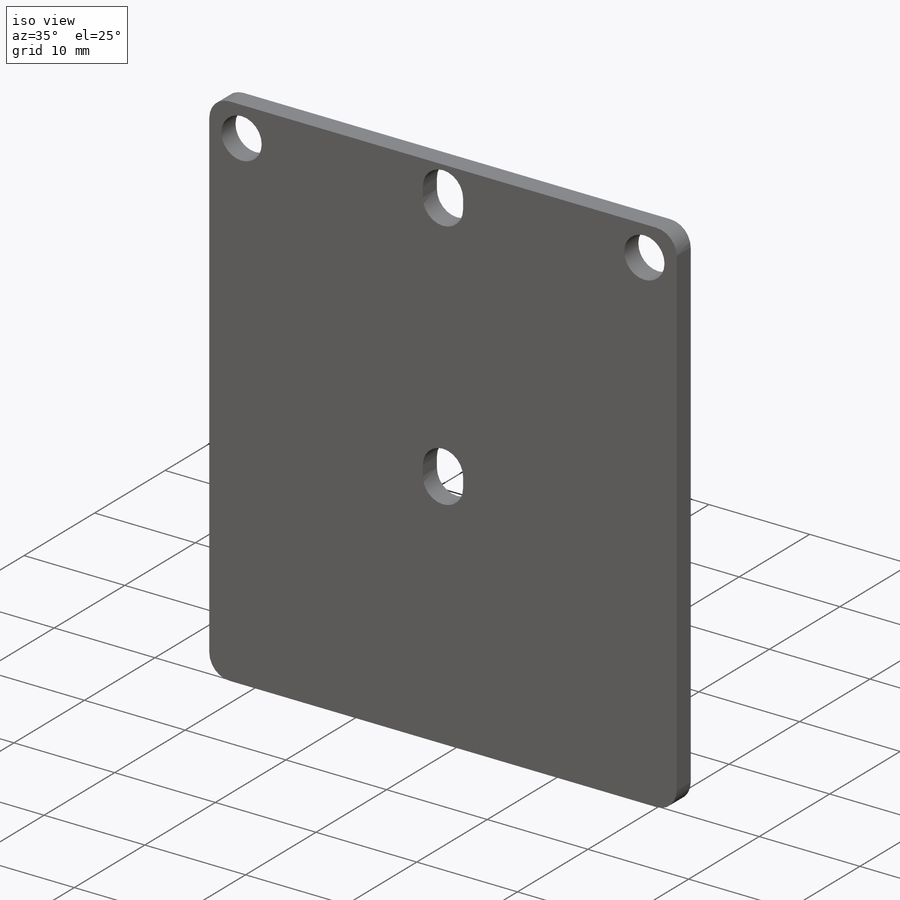
[diagram: iso view]
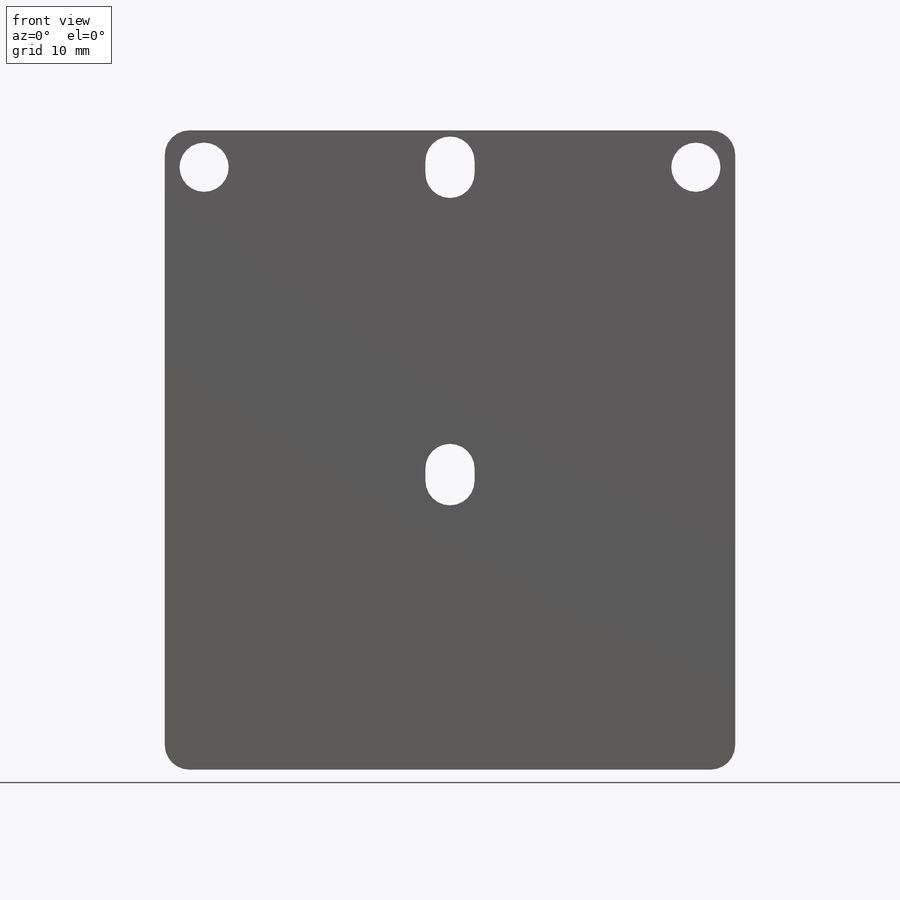
[diagram: front view]
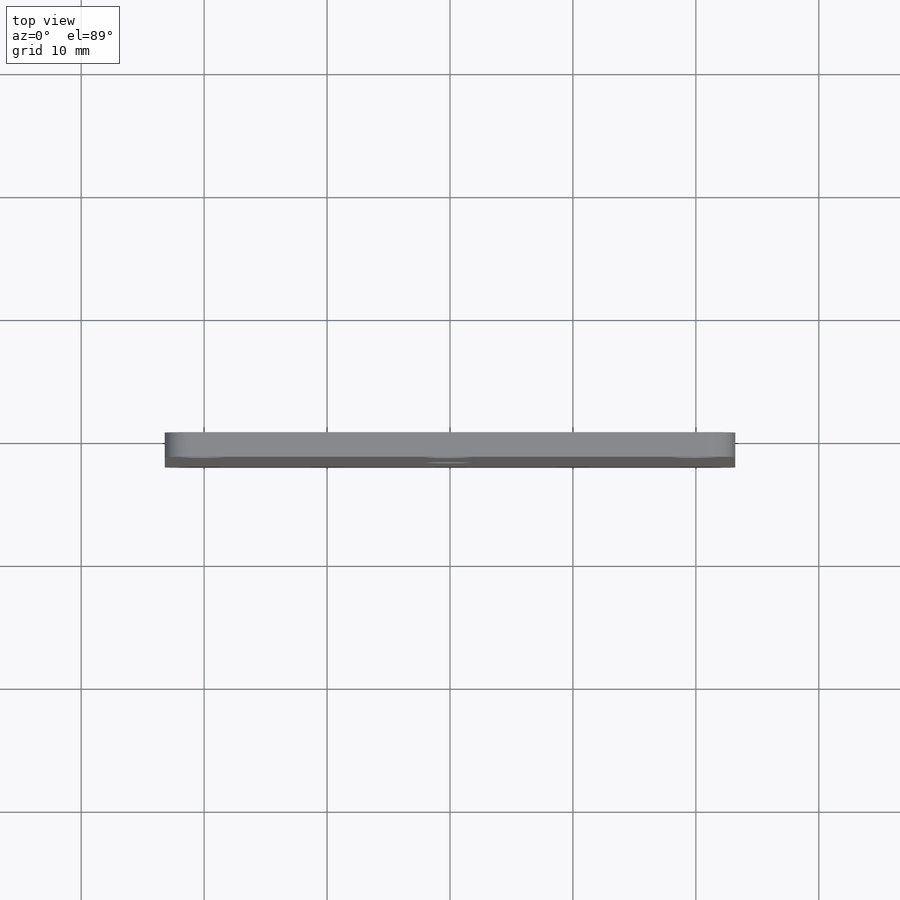
[diagram: top view]
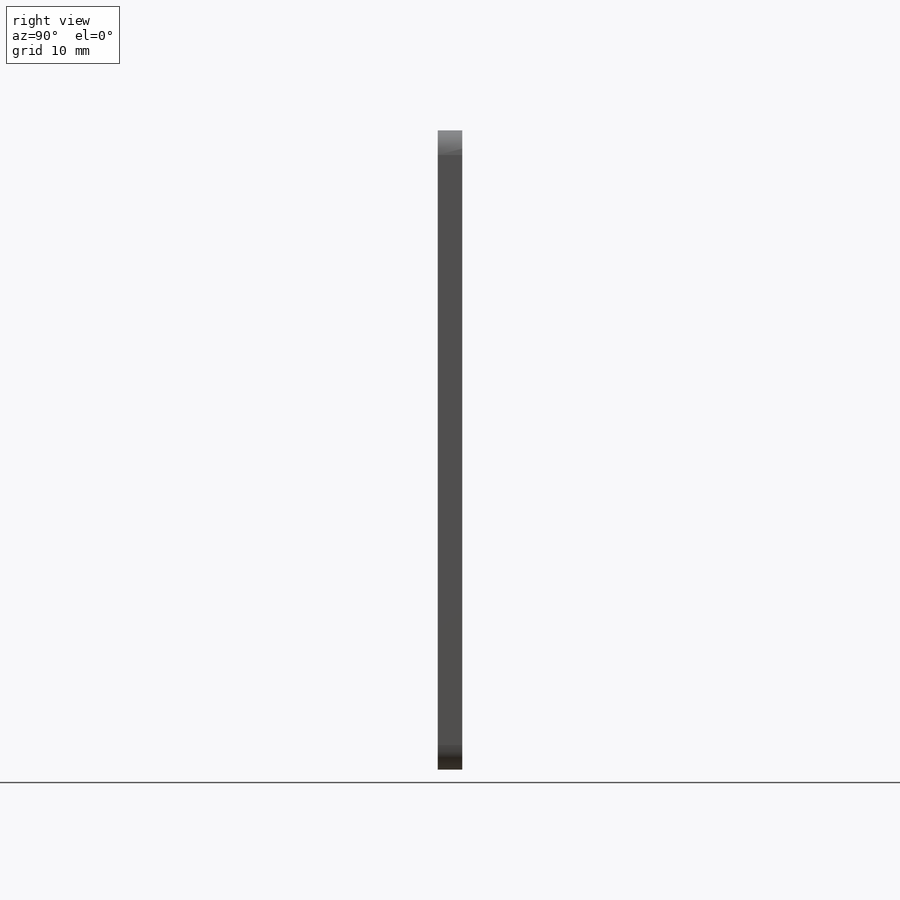
[diagram: right view]
SOLIDWORKS PART (.sldprt)
format: sldprt  version: not decoded by parser v0  size: 186,880 bytes
history: native  units: mm
features: plane x3, sketch x3, cut_extrude x2, material x1, extrude x1, fillet x1 (+10 scaffold rows collapsed)
feature tree (21):
  scaffold x10  (default folders/planes/origin — collapsed)
  material  "PVC 0.007 plastifié"
  plane  "Face"
  plane  "Dessus"
  plane  "Droite"
  sketch  "Esquisse1"  dims[D1=46.4mm D2=52.0mm]
  extrude  "Extrusion1"  Depth=2mm
  sketch  "Esquisse2"  dims[D1=4.0mm D2=20.0mm D3=3.0mm]
  cut_extrude  "Enlèv. mat.-Extru.1"  [1 undecoded]
  sketch  "Esquisse3"  dims[c1.D1=4.0mm c1.D2=4.0mm c1.D6=2.0mm c1.D7=2.0mm c2.D6=2.0mm c2.D3=1.0mm c2.D4=2.5mm c2.D5=24.0mm c3.D6=22.5mm c3.D4=22.5mm c4.D6=2.5mm]
  cut_extrude  "Enlèv. mat.-Extru.2"  [1 undecoded]
  fillet  "Congé1"  Radius=2mm
decode coverage: 5 of 7 modeling features carry decoded parameters
note: 2 parameter values undecoded
note: suppression state not decoded; provenance and decode notes live in map.json
